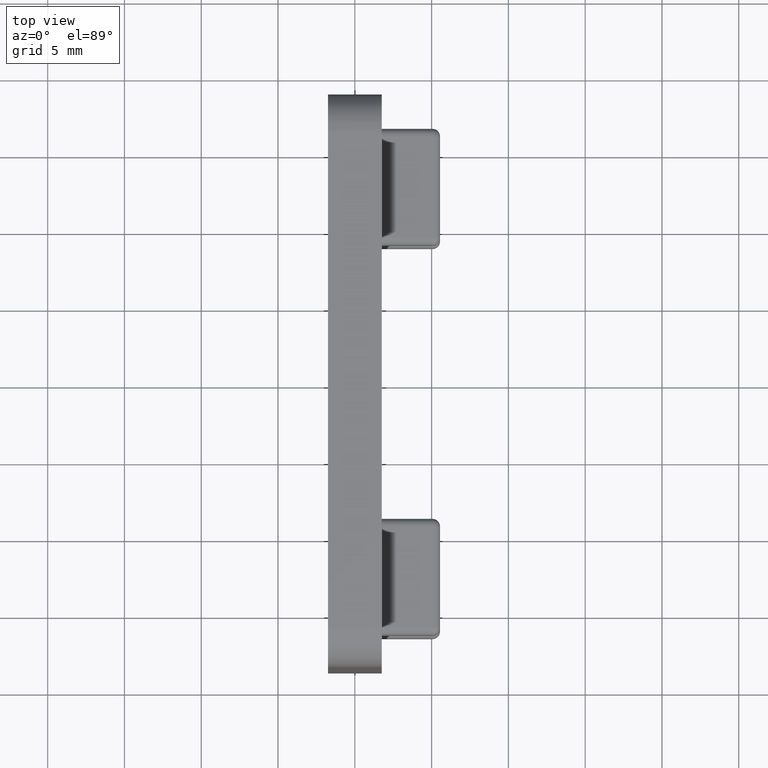
[diagram: clean part render]
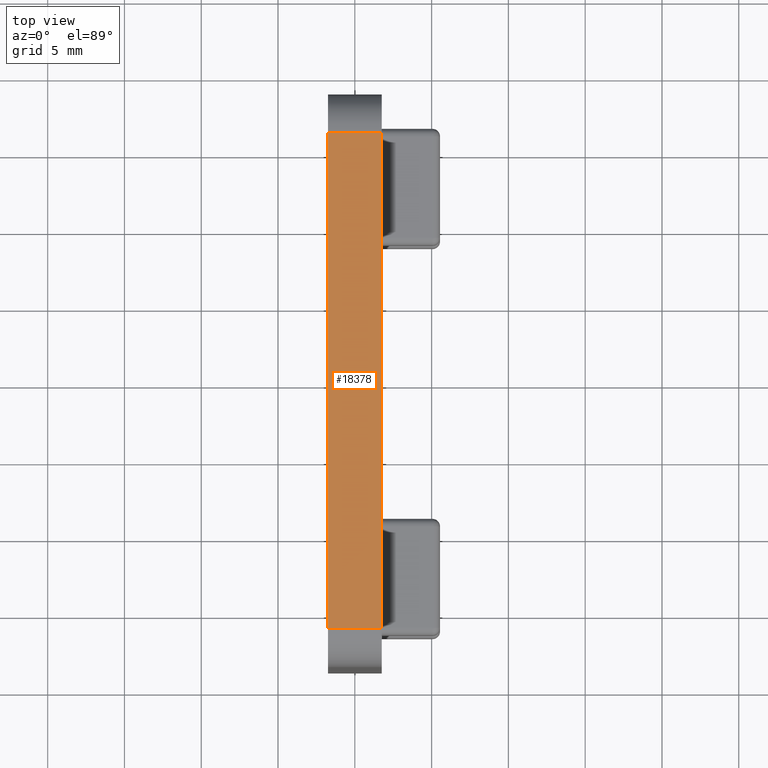
[diagram: same view with one face highlighted and labeled with its STEP entity id]
A machine part, top view. The second image highlights one B-rep face of the part: STEP entity #18378.
In plain terms, the highlighted planar face has unit normal (0, 0, -1).
Its self-contained STEP definition (entity closure, byte-faithful):
#958 = CARTESIAN_POINT ( 'NONE',  ( -1.750000000000000000, 16.15000000000000568, 14.35000000000000497 ) ) ;
#2315 = LINE ( 'NONE', #19328, #20221 ) ;
#3070 = ORIENTED_EDGE ( 'NONE', *, *, #22347, .F. ) ;
#3411 = VERTEX_POINT ( 'NONE', #958 ) ;
#3428 = EDGE_CURVE ( 'NONE', #3411, #13760, #11975, .T. ) ;
#4491 = DIRECTION ( 'NONE',  ( 1.000000000000000000, -0.000000000000000000, -0.000000000000000000 ) ) ;
#4956 = VECTOR ( 'NONE', #4491, 1000.000000000000000 ) ;
#5223 = ORIENTED_EDGE ( 'NONE', *, *, #3428, .T. ) ;
#5244 = EDGE_CURVE ( 'NONE', #14159, #3411, #16809, .T. ) ;
#6518 = CARTESIAN_POINT ( 'NONE',  ( -1.750000000000000000, 18.65000000000000213, 14.35000000000000497 ) ) ;
#6820 = FACE_OUTER_BOUND ( 'NONE', #11991, .T. ) ;
#7076 = CARTESIAN_POINT ( 'NONE',  ( 1.750000000000000000, 16.15000000000000568, 14.35000000000000497 ) ) ;
#7809 = LINE ( 'NONE', #11631, #4956 ) ;
#7975 = AXIS2_PLACEMENT_3D ( 'NONE', #16535, #20268, #20107 ) ;
#9409 = CARTESIAN_POINT ( 'NONE',  ( 1.750000000000000000, 16.15000000000000568, 14.35000000000000497 ) ) ;
#10116 = DIRECTION ( 'NONE',  ( 0.000000000000000000, -1.000000000000000000, -9.301466359124971049E-17 ) ) ;
#11188 = PLANE ( 'NONE',  #7975 ) ;
#11363 = ORIENTED_EDGE ( 'NONE', *, *, #12207, .T. ) ;
#11631 = CARTESIAN_POINT ( 'NONE',  ( 1.750000000000000000, -16.14999999999999503, 14.35000000000000142 ) ) ;
#11907 = VECTOR ( 'NONE', #22319, 1000.000000000000000 ) ;
#11975 = LINE ( 'NONE', #6518, #19495 ) ;
#11991 = EDGE_LOOP ( 'NONE', ( #5223, #11363, #3070, #22768 ) ) ;
#12207 = EDGE_CURVE ( 'NONE', #13760, #14788, #7809, .T. ) ;
#12992 = CARTESIAN_POINT ( 'NONE',  ( -1.750000000000000000, -16.14999999999999503, 14.35000000000000142 ) ) ;
#13760 = VERTEX_POINT ( 'NONE', #12992 ) ;
#14159 = VERTEX_POINT ( 'NONE', #7076 ) ;
#14788 = VERTEX_POINT ( 'NONE', #16597 ) ;
#16535 = CARTESIAN_POINT ( 'NONE',  ( 1.750000000000000000, 18.65000000000000213, 14.35000000000000497 ) ) ;
#16597 = CARTESIAN_POINT ( 'NONE',  ( 1.750000000000000000, -16.14999999999999503, 14.35000000000000142 ) ) ;
#16809 = LINE ( 'NONE', #9409, #11907 ) ;
#18378 = ADVANCED_FACE ( 'NONE', ( #6820 ), #11188, .F. ) ;
#19328 = CARTESIAN_POINT ( 'NONE',  ( 1.750000000000000000, 18.65000000000000213, 14.35000000000000497 ) ) ;
#19495 = VECTOR ( 'NONE', #23318, 1000.000000000000000 ) ;
#20107 = DIRECTION ( 'NONE',  ( 0.000000000000000000, 1.000000000000000000, 9.301466359124972281E-17 ) ) ;
#20221 = VECTOR ( 'NONE', #10116, 1000.000000000000000 ) ;
#20268 = DIRECTION ( 'NONE',  ( 0.000000000000000000, 9.301466359124972281E-17, -1.000000000000000000 ) ) ;
#22319 = DIRECTION ( 'NONE',  ( -1.000000000000000000, 0.000000000000000000, 0.000000000000000000 ) ) ;
#22347 = EDGE_CURVE ( 'NONE', #14159, #14788, #2315, .T. ) ;
#22768 = ORIENTED_EDGE ( 'NONE', *, *, #5244, .T. ) ;
#23318 = DIRECTION ( 'NONE',  ( 0.000000000000000000, -1.000000000000000000, -9.301466359124971049E-17 ) ) ;